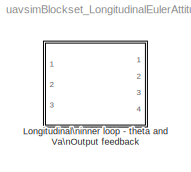
MODEL uavsimBlockset_LongitudinalEulerAttitudeAndSpeedController
KIND library
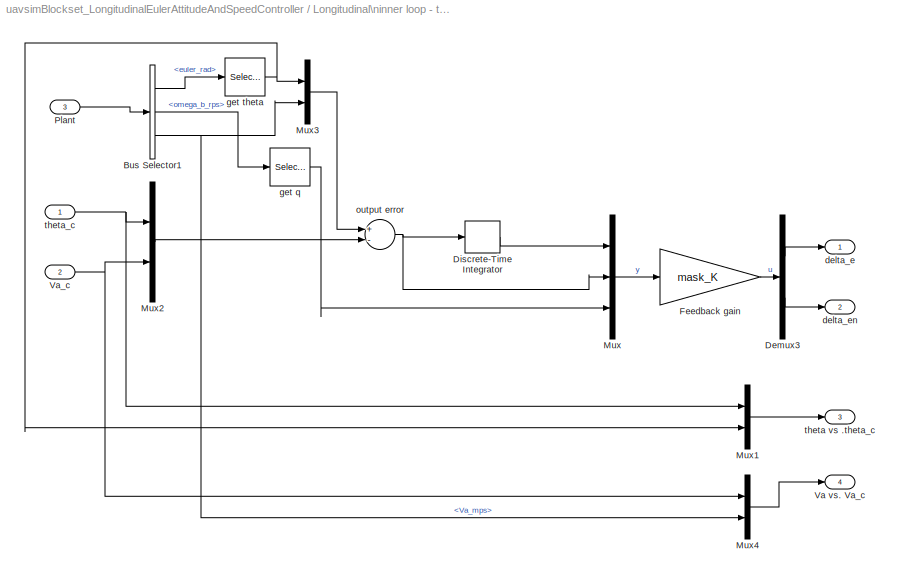
BLOCK [SubSystem] Longitudinal\ninner loop - theta and Va\nOutput feedback
  FunctionWithSeparateData = off
  MaskHideContents = off
  MinAlgLoopOccurrences = off
  Opaque = off
  Ports = [3, 4]
  PropExecContextOutsideSubsystem = off
  RTWSystemCode = Auto
  RequestExecContextInheritance = off
  SID = 1996
BLOCK [BusSelector] Longitudinal\ninner loop - theta and Va\nOutput feedback/Bus Selector1
  OutputSignals = Kinematics.Attitude.euler_rad,Kinematics.RotationalVelocity.omega_b_rps,Aero.Va_mps
  Ports = [1, 3]
  SID = 2002
BLOCK [Demux] Longitudinal\ninner loop - theta and Va\nOutput feedback/Demux3
  DisplayOption = bar
  Outputs = 2
  Ports = [1, 2]
  SID = 2005
BLOCK [DiscreteIntegrator] Longitudinal\ninner loop - theta and Va\nOutput feedback/Discrete-Time Integrator
  ICPrevOutput = DiscIntNeverNeededParam
  ICPrevScaledInput = DiscIntNeverNeededParam
  Ports = [1, 1]
  SID = 4428
  SampleTime = -1
BLOCK [Gain] Longitudinal\ninner loop - theta and Va\nOutput feedback/Feedback gain
  Gain = mask_K
  Multiplication = Matrix(K*u)
  OutDataTypeStr = Inherit: Inherit via internal rule
  ParamDataTypeStr = Inherit: Inherit via internal rule
  SID = 2006
  SaturateOnIntegerOverflow = off
BLOCK [Mux] Longitudinal\ninner loop - theta and Va\nOutput feedback/Mux
  DisplayOption = bar
  Inputs = 3
  Ports = [3, 1]
  SID = 2008
BLOCK [Mux] Longitudinal\ninner loop - theta and Va\nOutput feedback/Mux1
  DisplayOption = bar
  Inputs = 2
  Ports = [2, 1]
  SID = 2018
BLOCK [Mux] Longitudinal\ninner loop - theta and Va\nOutput feedback/Mux2
  DisplayOption = bar
  Inputs = 2
  Ports = [2, 1]
  SID = 2009
BLOCK [Mux] Longitudinal\ninner loop - theta and Va\nOutput feedback/Mux3
  DisplayOption = bar
  Inputs = 2
  Ports = [2, 1]
  SID = 2010
BLOCK [Mux] Longitudinal\ninner loop - theta and Va\nOutput feedback/Mux4
  DisplayOption = bar
  Inputs = 2
  Ports = [2, 1]
  SID = 2020
BLOCK [Inport] Longitudinal\ninner loop - theta and Va\nOutput feedback/Plant
  IconDisplay = Port number
  OutDataTypeStr = Bus: Airframe
  Port = 3
  SID = 2001
BLOCK [Outport] Longitudinal\ninner loop - theta and Va\nOutput feedback/Va vs. Va_c
  IconDisplay = Port number
  Port = 4
  SID = 2019
BLOCK [Inport] Longitudinal\ninner loop - theta and Va\nOutput feedback/Va_c
  IconDisplay = Port number
  Port = 2
  SID = 2000
BLOCK [Outport] Longitudinal\ninner loop - theta and Va\nOutput feedback/delta_e
  IconDisplay = Port number
  SID = 2013
BLOCK [Outport] Longitudinal\ninner loop - theta and Va\nOutput feedback/delta_en
  IconDisplay = Port number
  Port = 2
  SID = 2014
BLOCK [Selector] Longitudinal\ninner loop - theta and Va\nOutput feedback/get q
  IndexOptions = Index vector (dialog)
  Indices = 2
  InputPortWidth = 3
  OutputSizes = 1
  Ports = [1, 1]
  SID = 2011
BLOCK [Selector] Longitudinal\ninner loop - theta and Va\nOutput feedback/get theta
  IndexOptions = Index vector (dialog)
  Indices = 2
  InputPortWidth = 3
  OutputSizes = 1
  Ports = [1, 1]
  SID = 2015
BLOCK [Sum] Longitudinal\ninner loop - theta and Va\nOutput feedback/output error
  InputSameDT = off
  Inputs = +-
  OutDataTypeStr = Inherit: Inherit via internal rule
  Ports = [2, 1]
  SID = 2012
  SaturateOnIntegerOverflow = off
BLOCK [Outport] Longitudinal\ninner loop - theta and Va\nOutput feedback/theta vs .theta_c
  IconDisplay = Port number
  Port = 3
  SID = 2016
BLOCK [Inport] Longitudinal\ninner loop - theta and Va\nOutput feedback/theta_c
  IconDisplay = Port number
  SID = 1999
LINE Longitudinal\ninner loop - theta and Va\nOutput feedback/Bus Selector1:1 -> Longitudinal\ninner loop - theta and Va\nOutput feedback/get theta:1
LINE Longitudinal\ninner loop - theta and Va\nOutput feedback/Bus Selector1:2 -> Longitudinal\ninner loop - theta and Va\nOutput feedback/get q:1
NET Longitudinal\ninner loop - theta and Va\nOutput feedback/Bus Selector1:3 -> Longitudinal\ninner loop - theta and Va\nOutput feedback/Mux3:2, Longitudinal\ninner loop - theta and Va\nOutput feedback/Mux4:2
LINE Longitudinal\ninner loop - theta and Va\nOutput feedback/Demux3:1 -> Longitudinal\ninner loop - theta and Va\nOutput feedback/delta_e:1
LINE Longitudinal\ninner loop - theta and Va\nOutput feedback/Demux3:2 -> Longitudinal\ninner loop - theta and Va\nOutput feedback/delta_en:1
LINE Longitudinal\ninner loop - theta and Va\nOutput feedback/Discrete-Time Integrator:1 -> Longitudinal\ninner loop - theta and Va\nOutput feedback/Mux:1
LINE Longitudinal\ninner loop - theta and Va\nOutput feedback/Feedback gain:1 -> Longitudinal\ninner loop - theta and Va\nOutput feedback/Demux3:1
LINE Longitudinal\ninner loop - theta and Va\nOutput feedback/Mux1:1 -> Longitudinal\ninner loop - theta and Va\nOutput feedback/theta vs .theta_c:1
LINE Longitudinal\ninner loop - theta and Va\nOutput feedback/Mux2:1 -> Longitudinal\ninner loop - theta and Va\nOutput feedback/output error:2
LINE Longitudinal\ninner loop - theta and Va\nOutput feedback/Mux3:1 -> Longitudinal\ninner loop - theta and Va\nOutput feedback/output error:1
LINE Longitudinal\ninner loop - theta and Va\nOutput feedback/Mux4:1 -> Longitudinal\ninner loop - theta and Va\nOutput feedback/Va vs. Va_c:1
LINE Longitudinal\ninner loop - theta and Va\nOutput feedback/Mux:1 -> Longitudinal\ninner loop - theta and Va\nOutput feedback/Feedback gain:1
LINE Longitudinal\ninner loop - theta and Va\nOutput feedback/Plant:1 -> Longitudinal\ninner loop - theta and Va\nOutput feedback/Bus Selector1:1
NET Longitudinal\ninner loop - theta and Va\nOutput feedback/Va_c:1 -> Longitudinal\ninner loop - theta and Va\nOutput feedback/Mux2:2, Longitudinal\ninner loop - theta and Va\nOutput feedback/Mux4:1
LINE Longitudinal\ninner loop - theta and Va\nOutput feedback/get q:1 -> Longitudinal\ninner loop - theta and Va\nOutput feedback/Mux:3
NET Longitudinal\ninner loop - theta and Va\nOutput feedback/get theta:1 -> Longitudinal\ninner loop - theta and Va\nOutput feedback/Mux1:2, Longitudinal\ninner loop - theta and Va\nOutput feedback/Mux3:1
NET Longitudinal\ninner loop - theta and Va\nOutput feedback/output error:1 -> Longitudinal\ninner loop - theta and Va\nOutput feedback/Discrete-Time Integrator:1, Longitudinal\ninner loop - theta and Va\nOutput feedback/Mux:2
NET Longitudinal\ninner loop - theta and Va\nOutput feedback/theta_c:1 -> Longitudinal\ninner loop - theta and Va\nOutput feedback/Mux1:1, Longitudinal\ninner loop - theta and Va\nOutput feedback/Mux2:1
note: NET lines group one-source signal fan-out (src -> all destinations, sorted); 1:1 wires keep LINE
